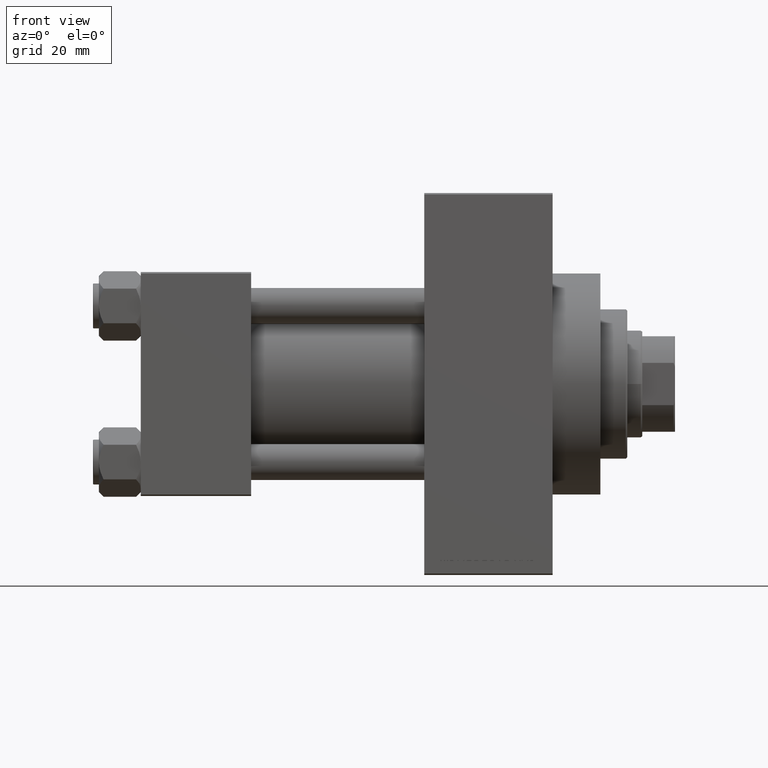
[diagram: clean part render]
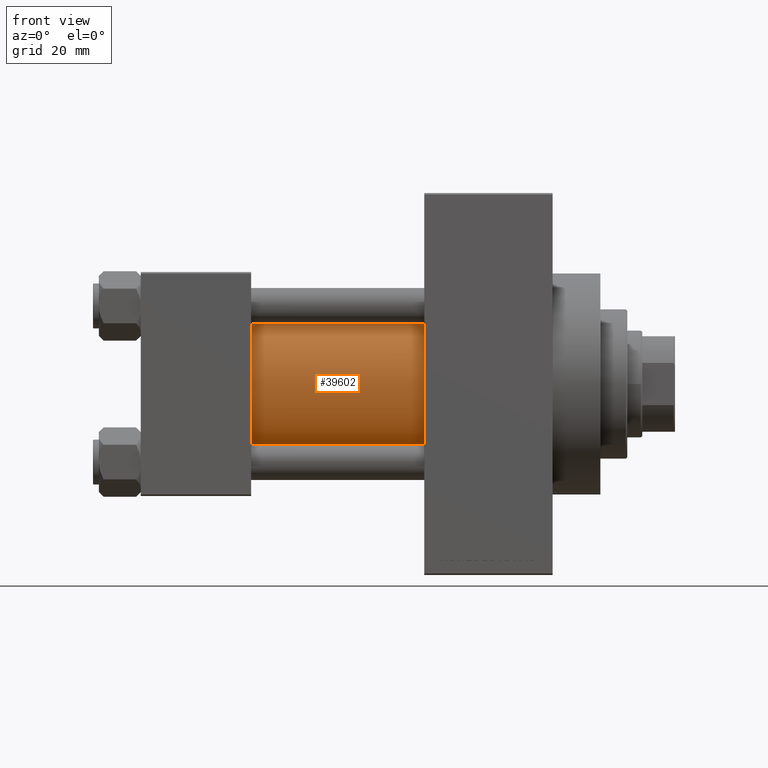
[diagram: same view with one face highlighted and labeled with its STEP entity id]
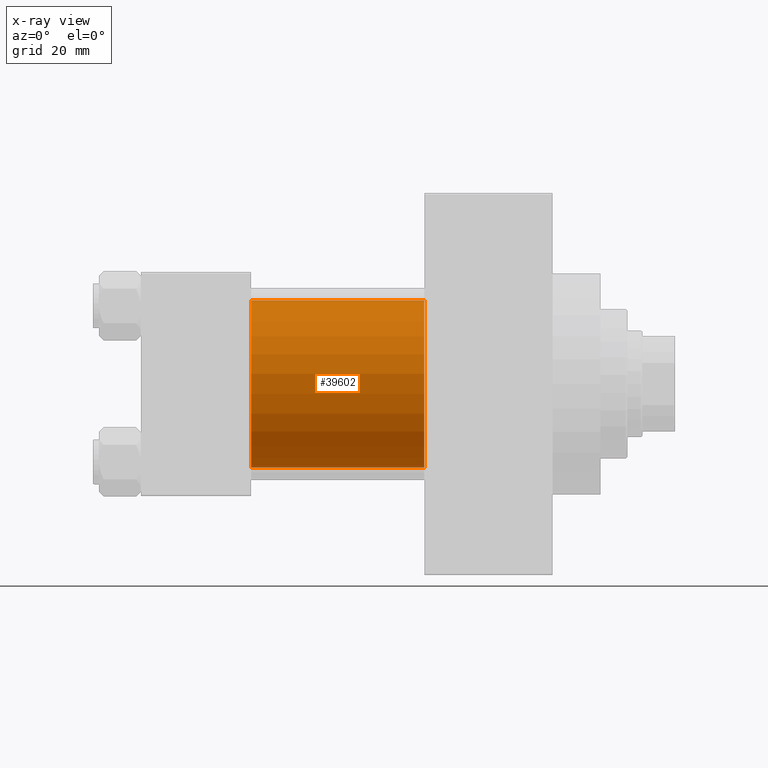
[diagram: x-ray of the same camera — body ghosted, the highlighted face saturated]
A machine part, front view. The second image highlights one B-rep face of the part: STEP entity #39602.
The next image is the same camera in x-ray: the body ghosted, the highlighted face saturated — about 2% of this face is hidden behind the body in this view.
In plain terms, the highlighted cylindrical surface (partial cylindrical patch) has radius 28 mm, axis along (-1, -0, -0).
Its self-contained STEP definition (entity closure, byte-faithful):
#339 = CYLINDRICAL_SURFACE ( 'NONE', #7987, 28.00000000000000000 ) ;
#1797 = DIRECTION ( 'NONE',  ( 1.000000000000000000, 0.000000000000000000, 0.000000000000000000 ) ) ;
#3416 = CIRCLE ( 'NONE', #5704, 28.00000000000000000 ) ;
#3861 = EDGE_CURVE ( 'NONE', #4755, #11812, #45797, .T. ) ;
#4755 = VERTEX_POINT ( 'NONE', #43174 ) ;
#5704 = AXIS2_PLACEMENT_3D ( 'NONE', #31383, #1797, #16347 ) ;
#7145 = CARTESIAN_POINT ( 'NONE',  ( 37.00000000000000000, 8.269258236473776482E-16, -28.00000000000000000 ) ) ;
#7525 = CARTESIAN_POINT ( 'NONE',  ( 37.00000000000000000, -2.602085213965210642E-15, 28.00000000000000000 ) ) ;
#7987 = AXIS2_PLACEMENT_3D ( 'NONE', #15111, #14880, #29693 ) ;
#11284 = VERTEX_POINT ( 'NONE', #14778 ) ;
#11778 = FACE_OUTER_BOUND ( 'NONE', #17251, .T. ) ;
#11812 = VERTEX_POINT ( 'NONE', #7525 ) ;
#14778 = CARTESIAN_POINT ( 'NONE',  ( 95.00000000000000000, 8.269258236473776482E-16, -28.00000000000000000 ) ) ;
#14880 = DIRECTION ( 'NONE',  ( -1.000000000000000000, -0.000000000000000000, -0.000000000000000000 ) ) ;
#15111 = CARTESIAN_POINT ( 'NONE',  ( 95.00000000000000000, -2.602085213965210642E-15, 0.000000000000000000 ) ) ;
#16347 = DIRECTION ( 'NONE',  ( 0.000000000000000000, 0.000000000000000000, -1.000000000000000000 ) ) ;
#16895 = VECTOR ( 'NONE', #20738, 1000.000000000000000 ) ;
#17251 = EDGE_LOOP ( 'NONE', ( #45192, #20095, #47085, #45481 ) ) ;
#18739 = EDGE_CURVE ( 'NONE', #11812, #39754, #47138, .T. ) ;
#20095 = ORIENTED_EDGE ( 'NONE', *, *, #39295, .F. ) ;
#20738 = DIRECTION ( 'NONE',  ( -1.000000000000000000, -0.000000000000000000, -0.000000000000000000 ) ) ;
#27248 = LINE ( 'NONE', #31926, #38997 ) ;
#28610 = DIRECTION ( 'NONE',  ( 0.000000000000000000, 0.000000000000000000, 1.000000000000000000 ) ) ;
#29693 = DIRECTION ( 'NONE',  ( 0.000000000000000000, 0.000000000000000000, 1.000000000000000000 ) ) ;
#31383 = CARTESIAN_POINT ( 'NONE',  ( 95.00000000000000000, -2.602085213965210642E-15, 0.000000000000000000 ) ) ;
#31725 = CARTESIAN_POINT ( 'NONE',  ( 95.00000000000000000, -2.602085213965210642E-15, 28.00000000000000000 ) ) ;
#31885 = EDGE_CURVE ( 'NONE', #11284, #39754, #27248, .T. ) ;
#31926 = CARTESIAN_POINT ( 'NONE',  ( 95.00000000000000000, 8.269258236473776482E-16, -28.00000000000000000 ) ) ;
#32430 = CARTESIAN_POINT ( 'NONE',  ( 37.00000000000000000, -2.602085213965210642E-15, 0.000000000000000000 ) ) ;
#35295 = DIRECTION ( 'NONE',  ( 1.000000000000000000, -0.000000000000000000, 0.000000000000000000 ) ) ;
#37985 = AXIS2_PLACEMENT_3D ( 'NONE', #32430, #35295, #28610 ) ;
#38997 = VECTOR ( 'NONE', #42904, 1000.000000000000000 ) ;
#39295 = EDGE_CURVE ( 'NONE', #4755, #11284, #3416, .T. ) ;
#39602 = ADVANCED_FACE ( 'NONE', ( #11778 ), #339, .T. ) ;
#39754 = VERTEX_POINT ( 'NONE', #7145 ) ;
#42904 = DIRECTION ( 'NONE',  ( -1.000000000000000000, -0.000000000000000000, -0.000000000000000000 ) ) ;
#43174 = CARTESIAN_POINT ( 'NONE',  ( 95.00000000000000000, -2.602085213965210642E-15, 28.00000000000000000 ) ) ;
#45192 = ORIENTED_EDGE ( 'NONE', *, *, #31885, .F. ) ;
#45481 = ORIENTED_EDGE ( 'NONE', *, *, #18739, .T. ) ;
#45797 = LINE ( 'NONE', #31725, #16895 ) ;
#47085 = ORIENTED_EDGE ( 'NONE', *, *, #3861, .T. ) ;
#47138 = CIRCLE ( 'NONE', #37985, 28.00000000000000000 ) ;